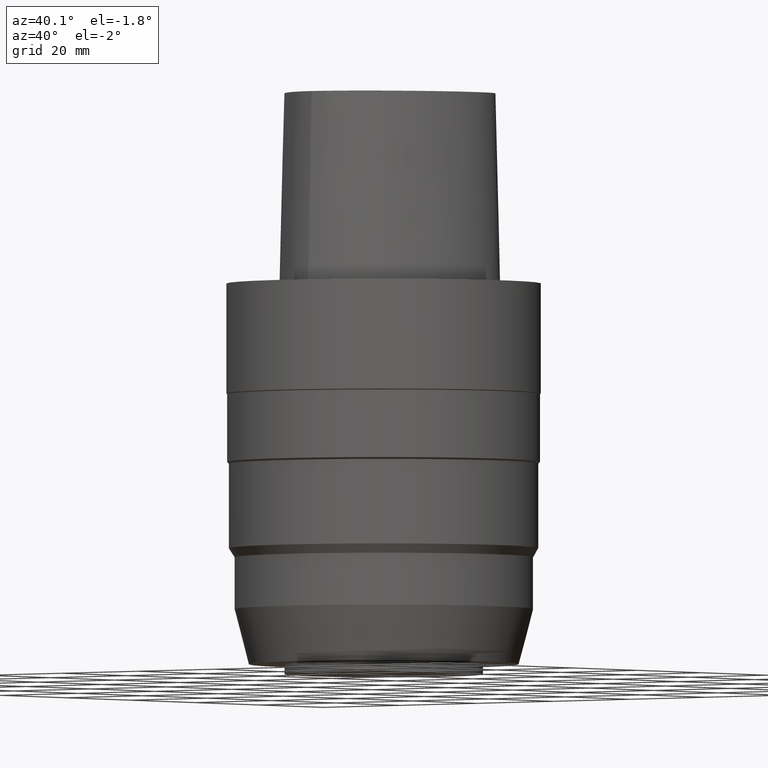
[diagram: clean part render]
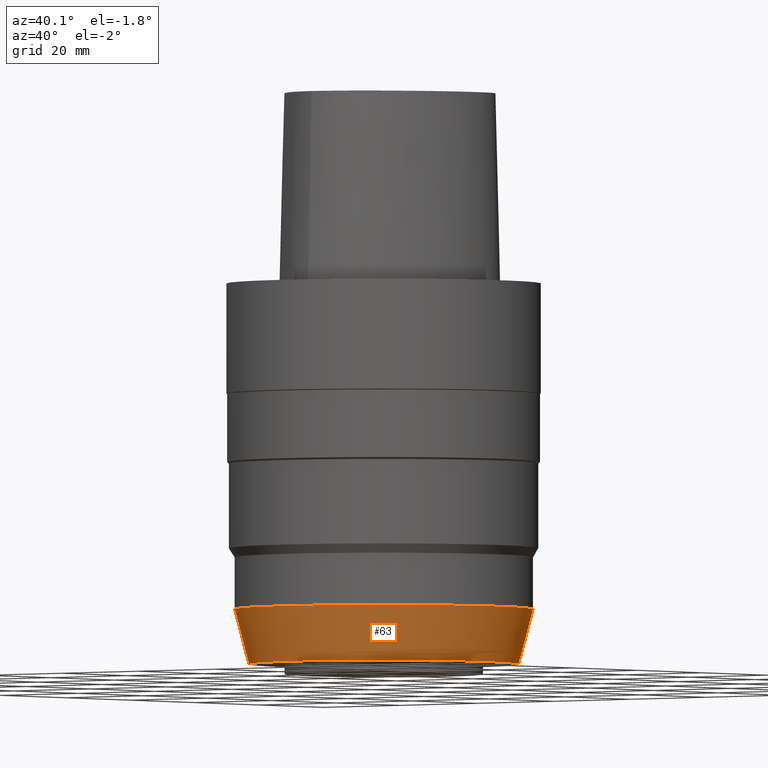
[diagram: same view with one face highlighted and labeled with its STEP entity id]
A machine part, auxiliary view. The second image highlights one B-rep face of the part: STEP entity #63.
In plain terms, the highlighted conical surface has half-angle 15 deg.
Its self-contained STEP definition (entity closure, byte-faithful):
#63=ADVANCED_FACE('Unnamed[1]',(#169,#170),#171,.T.);
#130=EDGE_CURVE('Unnamed[1]',#271,#271,#272,.T.);
#147=EDGE_CURVE('Unnamed[1]',#294,#294,#295,.T.);
#169=FACE_BOUND('',#309,.T.);
#170=FACE_BOUND('',#310,.T.);
#171=CONICAL_SURFACE('',#311,28.4750000000001,0.261799387799166);
#271=VERTEX_POINT('',#625);
#272=CIRCLE('',#626,29.9500000000003);
#294=VERTEX_POINT('',#671);
#295=CIRCLE('',#672,26.9999999999999);
#309=EDGE_LOOP('',(#678));
#310=EDGE_LOOP('',(#679));
#311=AXIS2_PLACEMENT_3D('',#680,#681,#682);
#625=CARTESIAN_POINT('',(3.99176380357903E-015,29.9500000000003,-65.1904501176707));
#626=AXIS2_PLACEMENT_3D('',#781,#782,#783);
#671=CARTESIAN_POINT('',(4.66590430475139E-015,26.9999999999999,-76.1999999999996));
#672=AXIS2_PLACEMENT_3D('',#807,#808,#809);
#678=ORIENTED_EDGE('',*,*,#147,.F.);
#679=ORIENTED_EDGE('',*,*,#130,.T.);
#680=CARTESIAN_POINT('',(4.32883405416521E-015,8.65766810833042E-015,-70.6952250588351));
#681=DIRECTION('',(-6.12323399573677E-017,-1.22464679914735E-016,1.0));
#682=DIRECTION('',(-1.23259516440783E-032,1.0,1.22464679914735E-016));
#781=CARTESIAN_POINT('',(3.99176380357903E-015,7.98352760715806E-015,-65.1904501176707));
#782=DIRECTION('',(6.12323399573677E-017,1.22464679914735E-016,-1.0));
#783=DIRECTION('',(-1.23259516440783E-032,1.0,1.22464679914735E-016));
#807=CARTESIAN_POINT('',(4.66590430475139E-015,9.33180860950278E-015,-76.1999999999996));
#808=DIRECTION('',(6.12323399573677E-017,1.22464679914735E-016,-1.0));
#809=DIRECTION('',(-1.23259516440783E-032,1.0,1.22464679914735E-016));